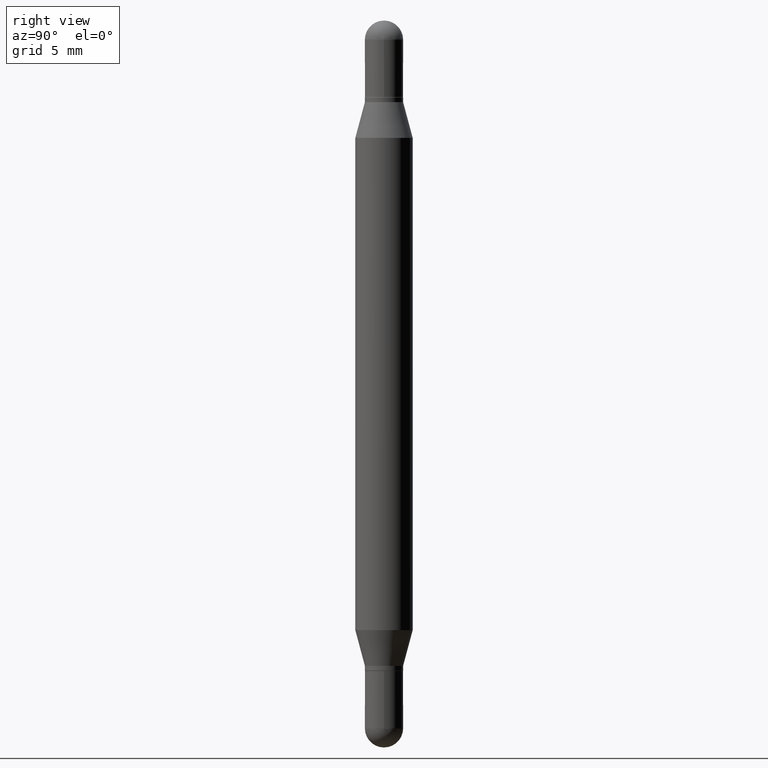
[diagram: clean part render]
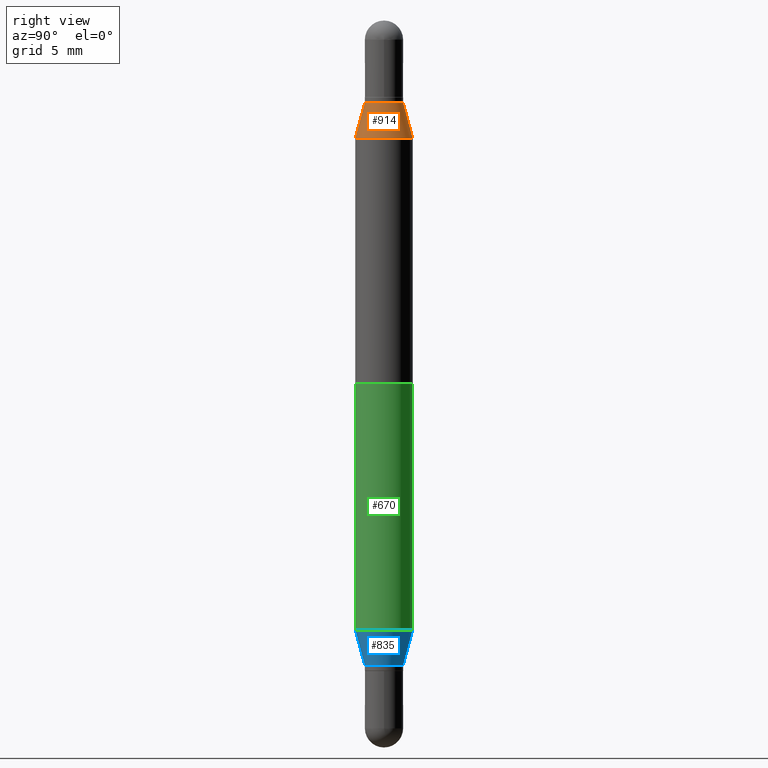
[diagram: same view with three faces highlighted in distinct colors, each labeled with its STEP entity id]
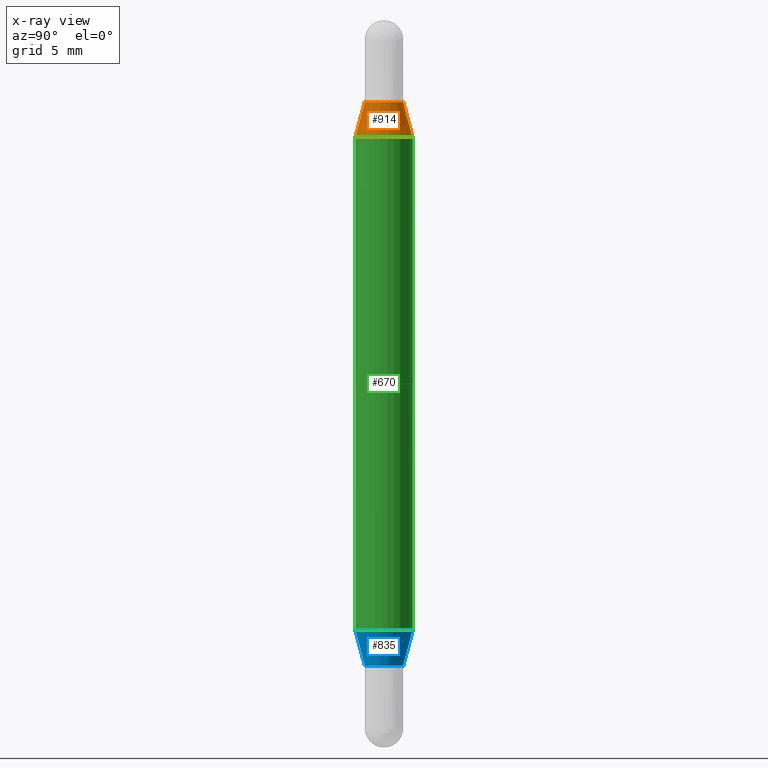
[diagram: x-ray of the same camera — body ghosted, the three highlighted faces saturated]
A machine part, right view with three faces highlighted in distinct colors.
The next image is the same camera in x-ray (body ghosted, the three faces saturated) — at least one of them is partly hidden behind the body in this view.
Their STEP definitions:

[orange] entity #914 — the highlighted conical surface has half-angle 15 deg.
#17 = AXIS2_PLACEMENT_3D ( 'NONE', #802, #779, #26 ) ;
#19 = CARTESIAN_POINT ( 'NONE',  ( 3.068521513334213693E-29, -8.485785503835664972E-16, -0.2415214009091068426 ) ) ;
#26 = DIRECTION ( 'NONE',  ( -6.982962677686266711E-15, -1.000000000000000000, 3.471217272762731039E-15 ) ) ;
#46 = ORIENTED_EDGE ( 'NONE', *, *, #294, .T. ) ;
#126 = CARTESIAN_POINT ( 'NONE',  ( -2.747795813669214889E-16, -0.03935000000000050263, -0.1679999999999998161 ) ) ;
#130 = AXIS2_PLACEMENT_3D ( 'NONE', #19, #452, #1044 ) ;
#156 = CARTESIAN_POINT ( 'NONE',  ( 2.699605962123416478E-16, 0.03934999999999932996, -0.1680000000000000937 ) ) ;
#234 = EDGE_CURVE ( 'NONE', #1076, #894, #510, .T. ) ;
#269 = EDGE_CURVE ( 'NONE', #1076, #389, #954, .T. ) ;
#281 = DIRECTION ( 'NONE',  ( -1.807323732225331717E-15, -0.2588190451025252359, -0.9659258262890670910 ) ) ;
#294 = EDGE_CURVE ( 'NONE', #894, #946, #440, .T. ) ;
#304 = LINE ( 'NONE', #156, #905 ) ;
#344 = CARTESIAN_POINT ( 'NONE',  ( 3.248344443952942082E-29, -5.927114087464415115E-16, -0.1679999999999999549 ) ) ;
#381 = AXIS2_PLACEMENT_3D ( 'NONE', #344, #953, #753 ) ;
#384 = CARTESIAN_POINT ( 'NONE',  ( -2.747795813669214889E-16, -0.03935000000000050263, -0.1679999999999998161 ) ) ;
#389 = VERTEX_POINT ( 'NONE', #882 ) ;
#394 = EDGE_LOOP ( 'NONE', ( #797, #880, #890, #46 ) ) ;
#405 = DIRECTION ( 'NONE',  ( 1.775627540710966878E-15, 0.2588190451025184080, -0.9659258262890689783 ) ) ;
#440 = CIRCLE ( 'NONE', #130, 0.05904999999999999832 ) ;
#452 = DIRECTION ( 'NONE',  ( 2.445858326897780646E-29, 3.480172282808476455E-15, 1.000000000000000000 ) ) ;
#479 = VECTOR ( 'NONE', #281, 39.37007874015748854 ) ;
#510 = LINE ( 'NONE', #126, #479 ) ;
#578 = EDGE_CURVE ( 'NONE', #389, #946, #304, .T. ) ;
#596 = FACE_OUTER_BOUND ( 'NONE', #394, .T. ) ;
#687 = CARTESIAN_POINT ( 'NONE',  ( 4.051124067684395845E-16, 0.05904999999999915178, -0.2415214009091070368 ) ) ;
#753 = DIRECTION ( 'NONE',  ( -6.982962677686266711E-15, -1.000000000000000000, 3.471217272762731039E-15 ) ) ;
#765 = CARTESIAN_POINT ( 'NONE',  ( -4.123439461173433657E-16, -0.05905000000000084487, -0.2415214009091066205 ) ) ;
#779 = DIRECTION ( 'NONE',  ( 2.445858326897780646E-29, 3.480172282808476455E-15, 1.000000000000000000 ) ) ;
#797 = ORIENTED_EDGE ( 'NONE', *, *, #578, .F. ) ;
#802 = CARTESIAN_POINT ( 'NONE',  ( 3.248344443952942082E-29, -5.927114087464415115E-16, -0.1679999999999999549 ) ) ;
#857 = CONICAL_SURFACE ( 'NONE', #381, 0.03934999999999991283, 0.2617993877991505181 ) ;
#880 = ORIENTED_EDGE ( 'NONE', *, *, #269, .F. ) ;
#882 = CARTESIAN_POINT ( 'NONE',  ( 2.699605962123417464E-16, 0.03934999999999932996, -0.1680000000000000937 ) ) ;
#890 = ORIENTED_EDGE ( 'NONE', *, *, #234, .T. ) ;
#894 = VERTEX_POINT ( 'NONE', #765 ) ;
#905 = VECTOR ( 'NONE', #405, 39.37007874015748854 ) ;
#914 = ADVANCED_FACE ( 'NONE', ( #596 ), #857, .T. ) ;
#946 = VERTEX_POINT ( 'NONE', #687 ) ;
#953 = DIRECTION ( 'NONE',  ( -2.445858326897780646E-29, -3.480172282808476455E-15, -1.000000000000000000 ) ) ;
#954 = CIRCLE ( 'NONE', #17, 0.03934999999999991283 ) ;
#1044 = DIRECTION ( 'NONE',  ( -6.982962677686265922E-15, -1.000000000000000000, 3.469747663417777397E-15 ) ) ;
#1076 = VERTEX_POINT ( 'NONE', #384 ) ;

[blue] entity #835 — the highlighted conical surface has half-angle 15 deg.
#39 = DIRECTION ( 'NONE',  ( 1.839019923739601893E-15, 0.2588190451025252359, 0.9659258262890670910 ) ) ;
#64 = DIRECTION ( 'NONE',  ( -6.982962677686265922E-15, -1.000000000000000000, 4.626330217890369336E-15 ) ) ;
#71 = AXIS2_PLACEMENT_3D ( 'NONE', #767, #270, #439 ) ;
#98 = CARTESIAN_POINT ( 'NONE',  ( -2.747795813669214889E-16, -0.03935000000000455495, -1.328099999999999614 ) ) ;
#121 = DIRECTION ( 'NONE',  ( -2.445858326897780646E-29, 3.490923523012497382E-15, 1.000000000000000000 ) ) ;
#168 = ORIENTED_EDGE ( 'NONE', *, *, #278, .T. ) ;
#175 = CARTESIAN_POINT ( 'NONE',  ( 3.248344443952942082E-29, -4.636295530912896697E-15, -1.328100000000000058 ) ) ;
#178 = CARTESIAN_POINT ( 'NONE',  ( 4.051124067684272093E-16, 0.05904999999999561988, -1.254578599090893309 ) ) ;
#247 = FACE_OUTER_BOUND ( 'NONE', #974, .T. ) ;
#260 = EDGE_CURVE ( 'NONE', #861, #436, #1081, .T. ) ;
#270 = DIRECTION ( 'NONE',  ( -2.445858326897780646E-29, 3.490923523012497382E-15, 1.000000000000000000 ) ) ;
#278 = EDGE_CURVE ( 'NONE', #436, #858, #722, .T. ) ;
#316 = DIRECTION ( 'NONE',  ( -1.807323732225331717E-15, -0.2588190451025184080, 0.9659258262890689783 ) ) ;
#355 = CIRCLE ( 'NONE', #491, 0.05904999999999999832 ) ;
#388 = DIRECTION ( 'NONE',  ( -2.445858326897780646E-29, 3.490923523012497382E-15, 1.000000000000000000 ) ) ;
#425 = CARTESIAN_POINT ( 'NONE',  ( 2.795985665216315415E-16, 0.03934999999999527764, -1.328100000000000280 ) ) ;
#436 = VERTEX_POINT ( 'NONE', #425 ) ;
#439 = DIRECTION ( 'NONE',  ( -6.982962677686266711E-15, -1.000000000000000000, 6.942434545525462078E-15 ) ) ;
#445 = CARTESIAN_POINT ( 'NONE',  ( 2.795985665216312949E-16, 0.03934999999999527764, -1.328100000000000280 ) ) ;
#482 = LINE ( 'NONE', #555, #906 ) ;
#491 = AXIS2_PLACEMENT_3D ( 'NONE', #649, #388, #64 ) ;
#555 = CARTESIAN_POINT ( 'NONE',  ( -2.747795813669214889E-16, -0.03935000000000455495, -1.328099999999999614 ) ) ;
#600 = CARTESIAN_POINT ( 'NONE',  ( -4.123439461173433164E-16, -0.05905000000000437677, -1.254578599090892865 ) ) ;
#603 = CONICAL_SURFACE ( 'NONE', #71, 0.03934999999999991283, 0.2617993877991505181 ) ;
#630 = EDGE_CURVE ( 'NONE', #723, #858, #355, .T. ) ;
#633 = EDGE_CURVE ( 'NONE', #861, #723, #482, .T. ) ;
#649 = CARTESIAN_POINT ( 'NONE',  ( 3.068521513334213693E-29, -4.379637943034464586E-15, -1.254578599090893087 ) ) ;
#715 = VECTOR ( 'NONE', #39, 39.37007874015748854 ) ;
#722 = LINE ( 'NONE', #445, #715 ) ;
#723 = VERTEX_POINT ( 'NONE', #600 ) ;
#767 = CARTESIAN_POINT ( 'NONE',  ( 3.248344443952942082E-29, -4.636295530912896697E-15, -1.328100000000000058 ) ) ;
#773 = DIRECTION ( 'NONE',  ( -6.982962677686266711E-15, -1.000000000000000000, 6.942434545525462078E-15 ) ) ;
#828 = AXIS2_PLACEMENT_3D ( 'NONE', #175, #121, #773 ) ;
#835 = ADVANCED_FACE ( 'NONE', ( #247 ), #603, .T. ) ;
#858 = VERTEX_POINT ( 'NONE', #178 ) ;
#861 = VERTEX_POINT ( 'NONE', #98 ) ;
#906 = VECTOR ( 'NONE', #316, 39.37007874015748854 ) ;
#974 = EDGE_LOOP ( 'NONE', ( #1064, #168, #1090, #1034 ) ) ;
#1034 = ORIENTED_EDGE ( 'NONE', *, *, #633, .F. ) ;
#1064 = ORIENTED_EDGE ( 'NONE', *, *, #260, .T. ) ;
#1081 = CIRCLE ( 'NONE', #828, 0.03934999999999991283 ) ;
#1090 = ORIENTED_EDGE ( 'NONE', *, *, #630, .F. ) ;

[green] entity #670 — the highlighted cylindrical surface (edge-blend (fillet) strip) has radius 1.4999 mm, axis along (-0, -0, -1).
#45 = LINE ( 'NONE', #901, #1027 ) ;
#64 = DIRECTION ( 'NONE',  ( -6.982962677686265922E-15, -1.000000000000000000, 4.626330217890369336E-15 ) ) ;
#88 = ORIENTED_EDGE ( 'NONE', *, *, #114, .T. ) ;
#101 = EDGE_CURVE ( 'NONE', #730, #1096, #353, .T. ) ;
#114 = EDGE_CURVE ( 'NONE', #730, #723, #727, .T. ) ;
#150 = AXIS2_PLACEMENT_3D ( 'NONE', #326, #226, #824 ) ;
#178 = CARTESIAN_POINT ( 'NONE',  ( 4.051124067684272093E-16, 0.05904999999999561988, -1.254578599090893309 ) ) ;
#208 = EDGE_LOOP ( 'NONE', ( #1002, #609, #88, #449 ) ) ;
#226 = DIRECTION ( 'NONE',  ( -2.445858326897780646E-29, -3.480172282808476455E-15, -1.000000000000000000 ) ) ;
#296 = DIRECTION ( 'NONE',  ( 2.445858326897780646E-29, 3.480172282808476455E-15, 1.000000000000000000 ) ) ;
#326 = CARTESIAN_POINT ( 'NONE',  ( 0.000000000000000000, -5.214728217544379106E-15, -1.496099999999999985 ) ) ;
#353 = CIRCLE ( 'NONE', #950, 0.05904999999999999832 ) ;
#355 = CIRCLE ( 'NONE', #491, 0.05904999999999999832 ) ;
#383 = CARTESIAN_POINT ( 'NONE',  ( 3.068521513334213693E-29, -8.485785503835664972E-16, -0.2415214009091068426 ) ) ;
#388 = DIRECTION ( 'NONE',  ( -2.445858326897780646E-29, 3.490923523012497382E-15, 1.000000000000000000 ) ) ;
#449 = ORIENTED_EDGE ( 'NONE', *, *, #630, .T. ) ;
#460 = VECTOR ( 'NONE', #912, 39.37007874015748143 ) ;
#491 = AXIS2_PLACEMENT_3D ( 'NONE', #649, #388, #64 ) ;
#600 = CARTESIAN_POINT ( 'NONE',  ( -4.123439461173433164E-16, -0.05905000000000437677, -1.254578599090892865 ) ) ;
#609 = ORIENTED_EDGE ( 'NONE', *, *, #101, .F. ) ;
#630 = EDGE_CURVE ( 'NONE', #723, #858, #355, .T. ) ;
#640 = DIRECTION ( 'NONE',  ( -6.982962677686265922E-15, -1.000000000000000000, 3.469747663417777397E-15 ) ) ;
#649 = CARTESIAN_POINT ( 'NONE',  ( 3.068521513334213693E-29, -4.379637943034464586E-15, -1.254578599090893087 ) ) ;
#670 = ADVANCED_FACE ( 'NONE', ( #1009 ), #1106, .T. ) ;
#723 = VERTEX_POINT ( 'NONE', #600 ) ;
#727 = LINE ( 'NONE', #1078, #460 ) ;
#730 = VERTEX_POINT ( 'NONE', #1071 ) ;
#764 = CARTESIAN_POINT ( 'NONE',  ( 4.051124067684395845E-16, 0.05904999999999915178, -0.2415214009091070368 ) ) ;
#824 = DIRECTION ( 'NONE',  ( -6.982962677686265922E-15, -1.000000000000000000, 4.626330217890369336E-15 ) ) ;
#858 = VERTEX_POINT ( 'NONE', #178 ) ;
#901 = CARTESIAN_POINT ( 'NONE',  ( 4.051124067684089175E-16, 0.05904999999999479415, -1.496100000000000207 ) ) ;
#912 = DIRECTION ( 'NONE',  ( -2.445858326897780926E-29, -3.480172282808476849E-15, -1.000000000000000000 ) ) ;
#950 = AXIS2_PLACEMENT_3D ( 'NONE', #383, #296, #640 ) ;
#993 = DIRECTION ( 'NONE',  ( -2.445858326897780926E-29, -3.480172282808476849E-15, -1.000000000000000000 ) ) ;
#1002 = ORIENTED_EDGE ( 'NONE', *, *, #1084, .F. ) ;
#1009 = FACE_OUTER_BOUND ( 'NONE', #208, .T. ) ;
#1027 = VECTOR ( 'NONE', #993, 39.37007874015748143 ) ;
#1071 = CARTESIAN_POINT ( 'NONE',  ( -4.123439461173433657E-16, -0.05905000000000084487, -0.2415214009091066205 ) ) ;
#1078 = CARTESIAN_POINT ( 'NONE',  ( -4.123439461173740327E-16, -0.05905000000000522331, -1.496099999999999541 ) ) ;
#1084 = EDGE_CURVE ( 'NONE', #1096, #858, #45, .T. ) ;
#1096 = VERTEX_POINT ( 'NONE', #764 ) ;
#1106 = CYLINDRICAL_SURFACE ( 'NONE', #150, 0.05905000000000000526 ) ;